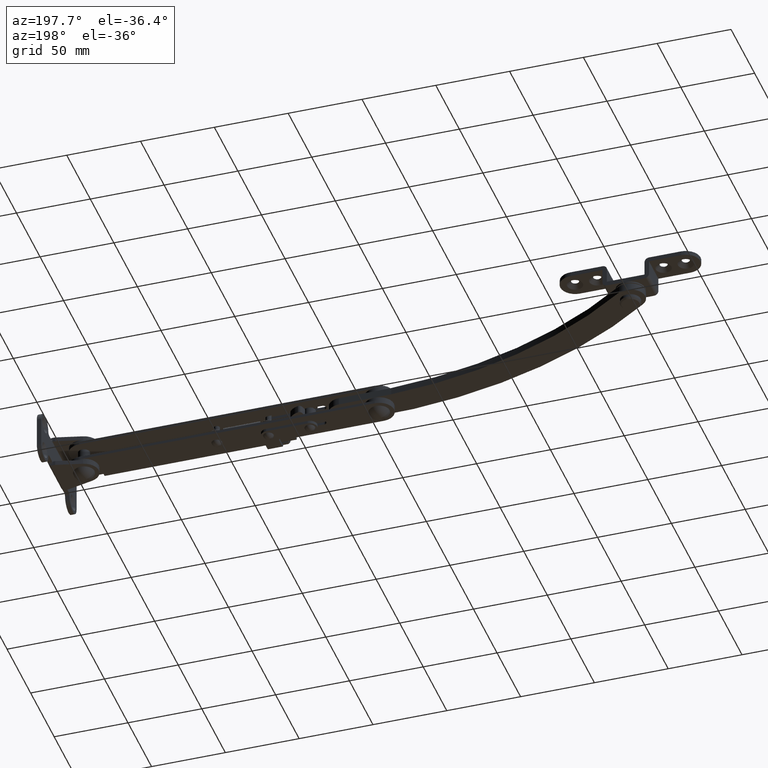
[diagram: clean part render]
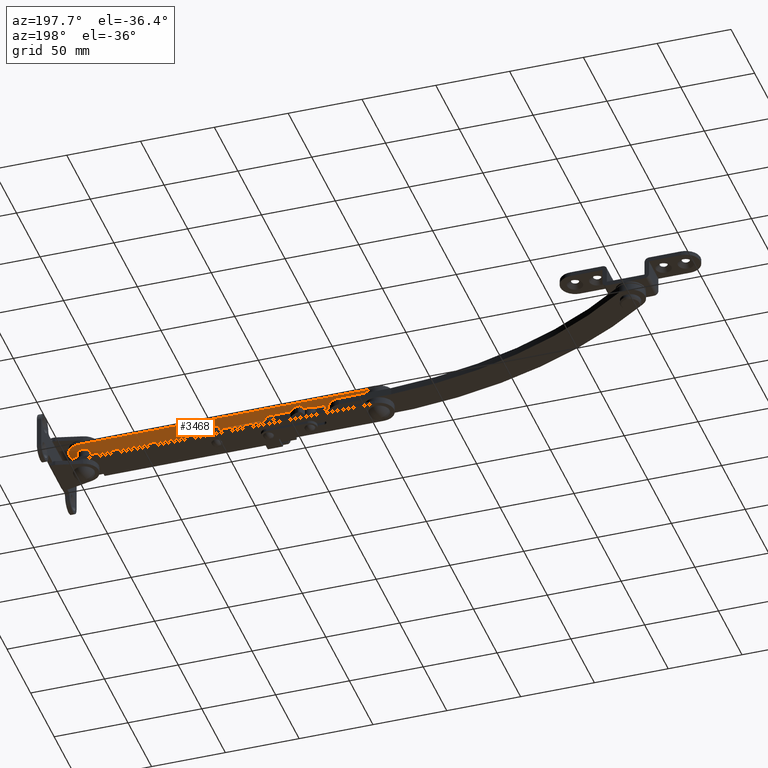
[diagram: same view with one face highlighted and labeled with its STEP entity id]
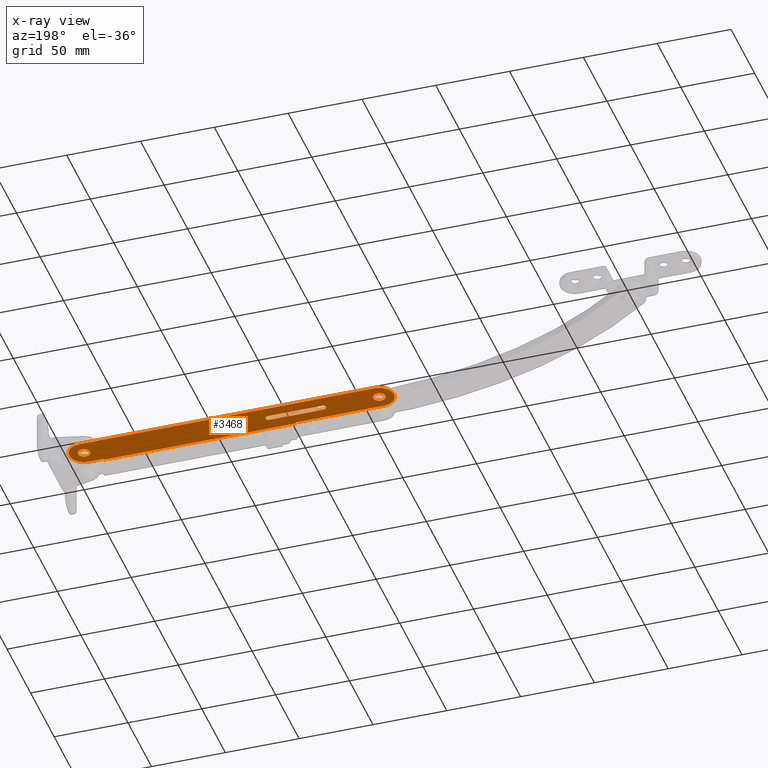
[diagram: x-ray of the same camera — body ghosted, the highlighted face saturated]
A machine part, auxiliary view. The second image highlights one B-rep face of the part: STEP entity #3468.
The next image is the same camera in x-ray: the body ghosted, the highlighted face saturated — about 0% of this face is hidden behind the body in this view.
In plain terms, the highlighted planar face has unit normal (0, 0, 1).
Its self-contained STEP definition (entity closure, byte-faithful):
#297 = DIRECTION ( 'NONE',  ( -1.000000000000000000, 0.0000000000000000000, 2.141633920959022300E-015 ) ) ;
#527 = LINE ( 'NONE', #15224, #17037 ) ;
#723 = EDGE_CURVE ( 'NONE', #9715, #11727, #1622, .T. ) ;
#854 = CARTESIAN_POINT ( 'NONE',  ( -161.9999689999999900, 2.100006000000095100, 5.000000000000450300 ) ) ;
#1052 = VERTEX_POINT ( 'NONE', #5344 ) ;
#1147 = LINE ( 'NONE', #7168, #14933 ) ;
#1223 = DIRECTION ( 'NONE',  ( 2.220497534810920000E-015, -0.0000000000000000000, 1.000000000000000000 ) ) ;
#1255 = EDGE_CURVE ( 'NONE', #7137, #9984, #11855, .T. ) ;
#1310 = ORIENTED_EDGE ( 'NONE', *, *, #2016, .F. ) ;
#1428 = ORIENTED_EDGE ( 'NONE', *, *, #12213, .F. ) ;
#1490 = CARTESIAN_POINT ( 'NONE',  ( 1.110248767405484000E-014, 10.00000000000000000, 5.000000000000119900 ) ) ;
#1622 = LINE ( 'NONE', #3735, #11870 ) ;
#1680 = CARTESIAN_POINT ( 'NONE',  ( -161.9999689999999900, 0.0000000000000000000, 5.000000000000450300 ) ) ;
#1850 = DIRECTION ( 'NONE',  ( -1.000000000000000000, 0.0000000000000000000, 2.220497534810920000E-015 ) ) ;
#1905 = VERTEX_POINT ( 'NONE', #12552 ) ;
#1966 = LINE ( 'NONE', #8488, #8653 ) ;
#2016 = EDGE_CURVE ( 'NONE', #3756, #14328, #2839, .T. ) ;
#2152 = CARTESIAN_POINT ( 'NONE',  ( -140.0000000000000000, -11.00000000000000000, 5.000000000000420100 ) ) ;
#2187 = ORIENTED_EDGE ( 'NONE', *, *, #9706, .T. ) ;
#2193 = FACE_OUTER_BOUND ( 'NONE', #13913, .T. ) ;
#2224 = CARTESIAN_POINT ( 'NONE',  ( -199.9910557339145200, 10.00000000000000000, 5.000000000000560400 ) ) ;
#2301 = DIRECTION ( 'NONE',  ( 2.220497534810920000E-015, -0.0000000000000000000, 1.000000000000000000 ) ) ;
#2367 = EDGE_CURVE ( 'NONE', #11727, #13309, #3479, .T. ) ;
#2381 = AXIS2_PLACEMENT_3D ( 'NONE', #2470, #11838, #3816 ) ;
#2414 = VECTOR ( 'NONE', #16684, 1000.000000000000000 ) ;
#2470 = CARTESIAN_POINT ( 'NONE',  ( -199.9999689999999900, 0.0000000000000000000, 5.000000000000560400 ) ) ;
#2787 = CIRCLE ( 'NONE', #15693, 4.049999999999999800 ) ;
#2821 = CARTESIAN_POINT ( 'NONE',  ( -164.0999689999999900, 0.0000000000000000000, 5.000000000000454700 ) ) ;
#2839 = LINE ( 'NONE', #14000, #2414 ) ;
#2945 = ORIENTED_EDGE ( 'NONE', *, *, #14573, .T. ) ;
#3014 = DIRECTION ( 'NONE',  ( -1.000000000000000000, 0.0000000000000000000, 2.065146995210493900E-015 ) ) ;
#3020 = CARTESIAN_POINT ( 'NONE',  ( -161.9999689999999900, 0.0000000000000000000, 5.000000000000450300 ) ) ;
#3039 = CARTESIAN_POINT ( 'NONE',  ( 1.110248767405484000E-014, 0.0000000000000000000, 5.000000000000110100 ) ) ;
#3132 = ORIENTED_EDGE ( 'NONE', *, *, #15701, .F. ) ;
#3395 = CIRCLE ( 'NONE', #9843, 10.00000198615783000 ) ;
#3398 = CARTESIAN_POINT ( 'NONE',  ( -195.9499690000000100, -4.959819536546781600E-016, 5.000000000000551600 ) ) ;
#3468 = ADVANCED_FACE ( 'NONE', ( #12884, #5753, #2193, #15982, #12471 ), #12417, .F. ) ;
#3479 = CIRCLE ( 'NONE', #16566, 2.099999999999990800 ) ;
#3532 = ORIENTED_EDGE ( 'NONE', *, *, #12850, .T. ) ;
#3538 = DIRECTION ( 'NONE',  ( 1.000000000000000000, 0.0000000000000000000, -2.220497534810920000E-015 ) ) ;
#3614 = CARTESIAN_POINT ( 'NONE',  ( -92.00000000000000000, 0.0000000000000000000, 5.000000000000344600 ) ) ;
#3735 = CARTESIAN_POINT ( 'NONE',  ( 1.110248767405484000E-014, -2.100006000000000000, 5.000000000000110100 ) ) ;
#3756 = VERTEX_POINT ( 'NONE', #2152 ) ;
#3816 = DIRECTION ( 'NONE',  ( -1.000000000000000000, 0.0000000000000000000, 2.141633920959022300E-015 ) ) ;
#3875 = ORIENTED_EDGE ( 'NONE', *, *, #12168, .F. ) ;
#3878 = VERTEX_POINT ( 'NONE', #3614 ) ;
#3983 = DIRECTION ( 'NONE',  ( -1.000000000000000000, 0.0000000000000000000, 2.220497534810920000E-015 ) ) ;
#3990 = CARTESIAN_POINT ( 'NONE',  ( -90.00000000000000000, 0.0000000000000000000, 5.000000000000340200 ) ) ;
#4061 = CARTESIAN_POINT ( 'NONE',  ( -90.00000000000000000, 0.0000000000000000000, 5.000000000000340200 ) ) ;
#4280 = CARTESIAN_POINT ( 'NONE',  ( 0.0000000000000000000, 0.0000000000000000000, 5.000000000000119900 ) ) ;
#4367 = DIRECTION ( 'NONE',  ( -1.000000000000000000, 0.0000000000000000000, 2.065146995210493900E-015 ) ) ;
#4385 = ORIENTED_EDGE ( 'NONE', *, *, #12412, .F. ) ;
#4460 = ORIENTED_EDGE ( 'NONE', *, *, #4501, .F. ) ;
#4501 = EDGE_CURVE ( 'NONE', #14135, #8332, #527, .T. ) ;
#4504 = DIRECTION ( 'NONE',  ( 0.0000000000000000000, -1.000000000000000000, 0.0000000000000000000 ) ) ;
#4755 = DIRECTION ( 'NONE',  ( 2.220497534810920000E-015, 0.0000000000000000000, 1.000000000000000000 ) ) ;
#5156 = EDGE_CURVE ( 'NONE', #3878, #14115, #11987, .T. ) ;
#5229 = CIRCLE ( 'NONE', #16330, 10.00000000000000000 ) ;
#5263 = VERTEX_POINT ( 'NONE', #1490 ) ;
#5320 = DIRECTION ( 'NONE',  ( -1.000000000000000000, 0.0000000000000000000, 2.168404344971006900E-015 ) ) ;
#5344 = CARTESIAN_POINT ( 'NONE',  ( -204.0499690000000000, 0.0000000000000000000, 5.000000000000569300 ) ) ;
#5370 = CARTESIAN_POINT ( 'NONE',  ( -140.0000000000000000, -9.999999999999799300, 5.000000000000429900 ) ) ;
#5392 = DIRECTION ( 'NONE',  ( -1.000000000000000000, 0.0000000000000000000, 2.168404344971006900E-015 ) ) ;
#5421 = ORIENTED_EDGE ( 'NONE', *, *, #17090, .T. ) ;
#5615 = DIRECTION ( 'NONE',  ( -1.000000000000000000, 0.0000000000000000000, 2.141633920959021100E-015 ) ) ;
#5684 = AXIS2_PLACEMENT_3D ( 'NONE', #3039, #16433, #8409 ) ;
#5749 = DIRECTION ( 'NONE',  ( 2.220497534810920000E-015, 0.0000000000000000000, 1.000000000000000000 ) ) ;
#5753 = FACE_BOUND ( 'NONE', #6728, .T. ) ;
#6016 = ORIENTED_EDGE ( 'NONE', *, *, #1255, .T. ) ;
#6072 = EDGE_CURVE ( 'NONE', #8332, #3756, #1966, .T. ) ;
#6219 = CARTESIAN_POINT ( 'NONE',  ( -125.0000000000000000, -2.100006000000000000, 5.000000000000450300 ) ) ;
#6298 = CARTESIAN_POINT ( 'NONE',  ( -161.9999691466075000, -2.100006000000000000, 5.000000000000469800 ) ) ;
#6302 = AXIS2_PLACEMENT_3D ( 'NONE', #7549, #16927, #8882 ) ;
#6408 = ORIENTED_EDGE ( 'NONE', *, *, #723, .T. ) ;
#6482 = CIRCLE ( 'NONE', #10529, 2.099999999999990800 ) ;
#6576 = LINE ( 'NONE', #11501, #13279 ) ;
#6728 = EDGE_LOOP ( 'NONE', ( #3532, #2187 ) ) ;
#6939 = AXIS2_PLACEMENT_3D ( 'NONE', #16292, #8281, #297 ) ;
#7137 = VERTEX_POINT ( 'NONE', #854 ) ;
#7168 = CARTESIAN_POINT ( 'NONE',  ( -10.00000000000000000, -13.00000000000000000, 5.000000000000139400 ) ) ;
#7499 = DIRECTION ( 'NONE',  ( 1.000000000000000000, 0.0000000000000000000, -2.220497534810920000E-015 ) ) ;
#7549 = CARTESIAN_POINT ( 'NONE',  ( -199.9999689999999900, 1.986158023026284700E-006, 5.000000000000560400 ) ) ;
#7619 = VECTOR ( 'NONE', #3983, 1000.000000000000000 ) ;
#7775 = CARTESIAN_POINT ( 'NONE',  ( -125.0000000000000000, 2.100006000000095100, 5.000000000000450300 ) ) ;
#8105 = ORIENTED_EDGE ( 'NONE', *, *, #12618, .T. ) ;
#8281 = DIRECTION ( 'NONE',  ( 2.220497534810920000E-015, -0.0000000000000000000, 1.000000000000000000 ) ) ;
#8332 = VERTEX_POINT ( 'NONE', #5370 ) ;
#8409 = DIRECTION ( 'NONE',  ( -1.000000000000000000, 0.0000000000000000000, 2.220497534810920000E-015 ) ) ;
#8488 = CARTESIAN_POINT ( 'NONE',  ( -140.0000000000000000, -9.999999999999799300, 5.000000000000429900 ) ) ;
#8495 = CARTESIAN_POINT ( 'NONE',  ( -10.00000000000000000, -9.999999999999799300, 5.000000000000139400 ) ) ;
#8653 = VECTOR ( 'NONE', #4504, 1000.000000000000000 ) ;
#8745 = ORIENTED_EDGE ( 'NONE', *, *, #11258, .T. ) ;
#8882 = DIRECTION ( 'NONE',  ( 1.000000000000000000, 0.0000000000000000000, -2.255140070863438400E-015 ) ) ;
#9065 = AXIS2_PLACEMENT_3D ( 'NONE', #10328, #2301, #11672 ) ;
#9208 = CARTESIAN_POINT ( 'NONE',  ( -125.0000000000000000, 0.0000000000000000000, 5.000000000000450300 ) ) ;
#9243 = ORIENTED_EDGE ( 'NONE', *, *, #5156, .T. ) ;
#9359 = ORIENTED_EDGE ( 'NONE', *, *, #2367, .T. ) ;
#9432 = CARTESIAN_POINT ( 'NONE',  ( -199.9999688314125300, -9.999999999999799300, 5.000000000000560400 ) ) ;
#9706 = EDGE_CURVE ( 'NONE', #13719, #1905, #12729, .T. ) ;
#9715 = VERTEX_POINT ( 'NONE', #6298 ) ;
#9810 = VERTEX_POINT ( 'NONE', #13138 ) ;
#9824 = CARTESIAN_POINT ( 'NONE',  ( 4.049999999999999800, -4.959819536546779600E-016, 5.000000000000111000 ) ) ;
#9843 = AXIS2_PLACEMENT_3D ( 'NONE', #13786, #5749, #15092 ) ;
#9857 = CARTESIAN_POINT ( 'NONE',  ( 1.110248767405484000E-014, 10.00000000000000000, 5.000000000000119900 ) ) ;
#9984 = VERTEX_POINT ( 'NONE', #2821 ) ;
#10328 = CARTESIAN_POINT ( 'NONE',  ( 0.0000000000000000000, 0.0000000000000000000, 5.000000000000119900 ) ) ;
#10456 = ORIENTED_EDGE ( 'NONE', *, *, #14916, .F. ) ;
#10529 = AXIS2_PLACEMENT_3D ( 'NONE', #3020, #12403, #4367 ) ;
#10584 = DIRECTION ( 'NONE',  ( -1.000000000000000000, 0.0000000000000000000, 2.065146995210493900E-015 ) ) ;
#10615 = ORIENTED_EDGE ( 'NONE', *, *, #11026, .F. ) ;
#10804 = ORIENTED_EDGE ( 'NONE', *, *, #17176, .T. ) ;
#11026 = EDGE_CURVE ( 'NONE', #11747, #14739, #16451, .T. ) ;
#11048 = DIRECTION ( 'NONE',  ( 2.220497534810920000E-015, -0.0000000000000000000, 1.000000000000000000 ) ) ;
#11258 = EDGE_CURVE ( 'NONE', #14115, #3878, #11634, .T. ) ;
#11273 = DIRECTION ( 'NONE',  ( 1.000000000000000000, 0.0000000000000000000, -2.220497534810920000E-015 ) ) ;
#11501 = CARTESIAN_POINT ( 'NONE',  ( -10.00000000000000000, -9.999999999999799300, 5.000000000000139400 ) ) ;
#11530 = VERTEX_POINT ( 'NONE', #8495 ) ;
#11634 = CIRCLE ( 'NONE', #15246, 2.000000000000001800 ) ;
#11672 = DIRECTION ( 'NONE',  ( -1.000000000000000000, 0.0000000000000000000, 2.141633920959021100E-015 ) ) ;
#11727 = VERTEX_POINT ( 'NONE', #6219 ) ;
#11747 = VERTEX_POINT ( 'NONE', #2224 ) ;
#11838 = DIRECTION ( 'NONE',  ( 2.220497534810920000E-015, -0.0000000000000000000, 1.000000000000000000 ) ) ;
#11855 = CIRCLE ( 'NONE', #16418, 2.099999999999990800 ) ;
#11870 = VECTOR ( 'NONE', #7499, 1000.000000000000000 ) ;
#11987 = CIRCLE ( 'NONE', #14301, 2.000000000000001800 ) ;
#12083 = CARTESIAN_POINT ( 'NONE',  ( -88.00000000000000000, -2.449293598294703900E-016, 5.000000000000335700 ) ) ;
#12168 = EDGE_CURVE ( 'NONE', #5263, #11747, #12250, .T. ) ;
#12213 = EDGE_CURVE ( 'NONE', #14328, #11530, #1147, .T. ) ;
#12250 = LINE ( 'NONE', #9857, #15358 ) ;
#12403 = DIRECTION ( 'NONE',  ( 2.220497534810920000E-015, -0.0000000000000000000, 1.000000000000000000 ) ) ;
#12412 = EDGE_CURVE ( 'NONE', #11530, #9810, #6576, .T. ) ;
#12417 = PLANE ( 'NONE',  #5684 ) ;
#12471 = FACE_BOUND ( 'NONE', #15096, .T. ) ;
#12552 = CARTESIAN_POINT ( 'NONE',  ( -4.049999999999999800, 0.0000000000000000000, 5.000000000000128800 ) ) ;
#12618 = EDGE_CURVE ( 'NONE', #13309, #7137, #14711, .T. ) ;
#12627 = CIRCLE ( 'NONE', #2381, 4.049999999999998000 ) ;
#12729 = CIRCLE ( 'NONE', #9065, 4.049999999999999800 ) ;
#12794 = CARTESIAN_POINT ( 'NONE',  ( 1.110248767405484000E-014, 0.0000000000000000000, 5.000000000000119900 ) ) ;
#12850 = EDGE_CURVE ( 'NONE', #1905, #13719, #2787, .T. ) ;
#12884 = FACE_BOUND ( 'NONE', #14477, .T. ) ;
#13135 = EDGE_LOOP ( 'NONE', ( #2945, #5421 ) ) ;
#13138 = CARTESIAN_POINT ( 'NONE',  ( 1.110248767405484000E-014, -9.999999999999799300, 5.000000000000119900 ) ) ;
#13279 = VECTOR ( 'NONE', #3538, 1000.000000000000000 ) ;
#13309 = VERTEX_POINT ( 'NONE', #7775 ) ;
#13368 = DIRECTION ( 'NONE',  ( 2.220497534810920000E-015, -0.0000000000000000000, 1.000000000000000000 ) ) ;
#13430 = DIRECTION ( 'NONE',  ( 2.220497534810920000E-015, -0.0000000000000000000, 1.000000000000000000 ) ) ;
#13479 = ORIENTED_EDGE ( 'NONE', *, *, #6072, .F. ) ;
#13607 = CIRCLE ( 'NONE', #6939, 4.049999999999998000 ) ;
#13650 = DIRECTION ( 'NONE',  ( 2.220497534810920000E-015, -0.0000000000000000000, 1.000000000000000000 ) ) ;
#13719 = VERTEX_POINT ( 'NONE', #9824 ) ;
#13786 = CARTESIAN_POINT ( 'NONE',  ( -199.9999689999999900, 1.986158023026284700E-006, 5.000000000000560400 ) ) ;
#13906 = DIRECTION ( 'NONE',  ( 0.0000000000000000000, 1.000000000000000000, 0.0000000000000000000 ) ) ;
#13913 = EDGE_LOOP ( 'NONE', ( #13479, #4460, #10456, #10615, #3875, #3132, #4385, #1428, #1310 ) ) ;
#14000 = CARTESIAN_POINT ( 'NONE',  ( 1.110248767405484000E-014, -11.00000000000000000, 5.000000000000110100 ) ) ;
#14115 = VERTEX_POINT ( 'NONE', #12083 ) ;
#14131 = DIRECTION ( 'NONE',  ( 1.000000000000000000, 0.0000000000000000000, -2.255140518769849200E-015 ) ) ;
#14135 = VERTEX_POINT ( 'NONE', #9432 ) ;
#14301 = AXIS2_PLACEMENT_3D ( 'NONE', #4061, #13430, #5392 ) ;
#14328 = VERTEX_POINT ( 'NONE', #16334 ) ;
#14477 = EDGE_LOOP ( 'NONE', ( #9243, #8745 ) ) ;
#14573 = EDGE_CURVE ( 'NONE', #1052, #16460, #12627, .T. ) ;
#14684 = CARTESIAN_POINT ( 'NONE',  ( -209.9999709861578200, 1.986158023026284700E-006, 5.000000000000582600 ) ) ;
#14711 = LINE ( 'NONE', #17342, #7619 ) ;
#14739 = VERTEX_POINT ( 'NONE', #14684 ) ;
#14916 = EDGE_CURVE ( 'NONE', #14739, #14135, #3395, .T. ) ;
#14933 = VECTOR ( 'NONE', #13906, 1000.000000000000000 ) ;
#15092 = DIRECTION ( 'NONE',  ( 1.000000000000000000, 0.0000000000000000000, -2.255140070863438400E-015 ) ) ;
#15096 = EDGE_LOOP ( 'NONE', ( #9359, #8105, #6016, #10804, #6408 ) ) ;
#15224 = CARTESIAN_POINT ( 'NONE',  ( -199.9999688314125300, -9.999999999999799300, 5.000000000000560400 ) ) ;
#15246 = AXIS2_PLACEMENT_3D ( 'NONE', #3990, #13368, #5320 ) ;
#15358 = VECTOR ( 'NONE', #1850, 1000.000000000000000 ) ;
#15693 = AXIS2_PLACEMENT_3D ( 'NONE', #4280, #13650, #5615 ) ;
#15701 = EDGE_CURVE ( 'NONE', #9810, #5263, #5229, .T. ) ;
#15982 = FACE_BOUND ( 'NONE', #13135, .T. ) ;
#16292 = CARTESIAN_POINT ( 'NONE',  ( -199.9999689999999900, 0.0000000000000000000, 5.000000000000560400 ) ) ;
#16330 = AXIS2_PLACEMENT_3D ( 'NONE', #12794, #4755, #14131 ) ;
#16334 = CARTESIAN_POINT ( 'NONE',  ( -10.00000000000000000, -11.00000000000000000, 5.000000000000139400 ) ) ;
#16418 = AXIS2_PLACEMENT_3D ( 'NONE', #1680, #11048, #3014 ) ;
#16433 = DIRECTION ( 'NONE',  ( 2.220497534810920000E-015, 0.0000000000000000000, 1.000000000000000000 ) ) ;
#16451 = CIRCLE ( 'NONE', #6302, 10.00000198615783000 ) ;
#16460 = VERTEX_POINT ( 'NONE', #3398 ) ;
#16566 = AXIS2_PLACEMENT_3D ( 'NONE', #9208, #1223, #10584 ) ;
#16684 = DIRECTION ( 'NONE',  ( 1.000000000000000000, -0.0000000000000000000, -2.220497534810920000E-015 ) ) ;
#16927 = DIRECTION ( 'NONE',  ( 2.220497534810920000E-015, 0.0000000000000000000, 1.000000000000000000 ) ) ;
#17037 = VECTOR ( 'NONE', #11273, 1000.000000000000000 ) ;
#17090 = EDGE_CURVE ( 'NONE', #16460, #1052, #13607, .T. ) ;
#17176 = EDGE_CURVE ( 'NONE', #9984, #9715, #6482, .T. ) ;
#17342 = CARTESIAN_POINT ( 'NONE',  ( 1.110248767405484000E-014, 2.100006000000095100, 5.000000000000110100 ) ) ;